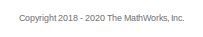
[diagram: root canvas - part 1/3, top center region]
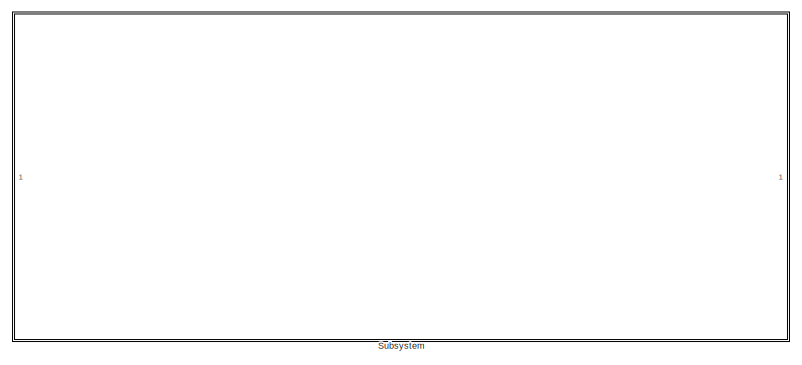
[diagram: root canvas - part 2/3, bottom left region]
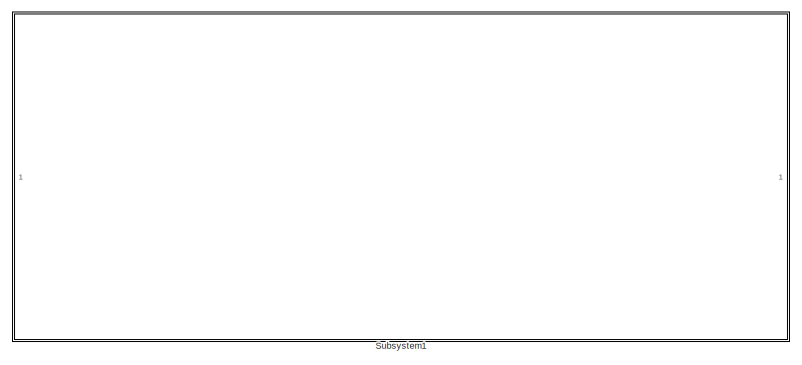
[diagram: root canvas - part 3/3, bottom right region]
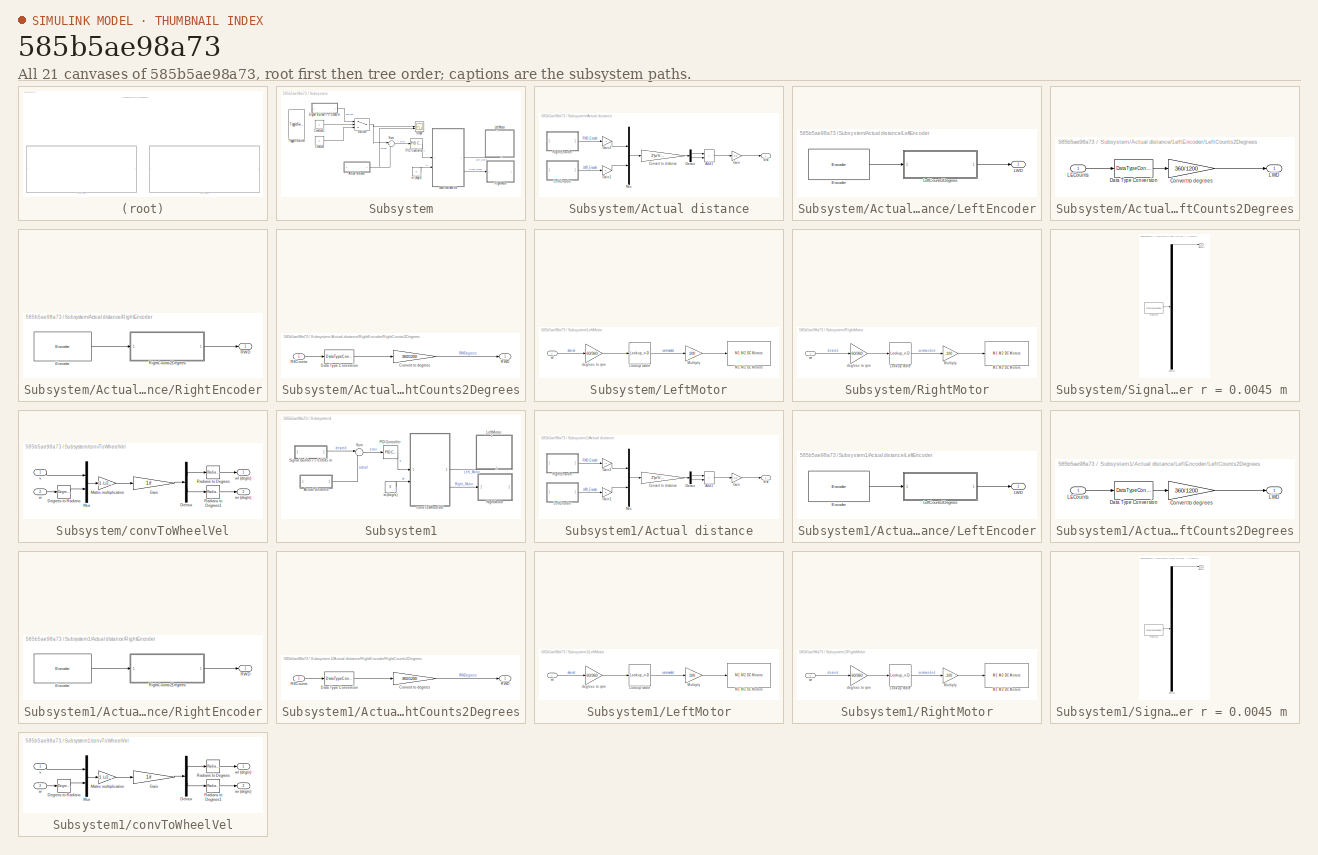
[diagram: thumbnail index - all 21 canvases of the model, root first then tree order]
MODEL slx_585b5ae98a73
KIND model
CONFIG AbsTol = auto
CONFIG EnableMultiTasking = on
CONFIG FixedStep = TS
CONFIG MaxStep = auto
CONFIG MinStep = auto
CONFIG PostLoadFcn = paramsBasicKinematics\nload('motorResponse.mat')
CONFIG RelTol = 1e-3
CONFIG SampleTimeConstraint = Unconstrained
CONFIG SolverName = FixedStepAuto
CONFIG StartTime = 0.0
CONFIG StopTime = 30
WORKSPACE source: mxarray member
WORKSPACE TS = 0.01
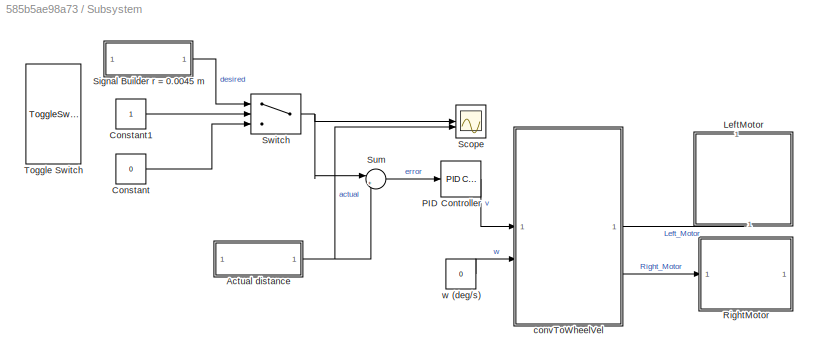
BLOCK [SubSystem] Subsystem
  Commented = on
BLOCK [SubSystem] Subsystem/Actual distance
BLOCK [Sum] Subsystem/Actual distance/Add1
  IconShape = rectangular
BLOCK [Gain] Subsystem/Actual distance/Convert to distance
  Gain = 2*pi*r/360
BLOCK [Demux] Subsystem/Actual distance/Demux
  Outputs = 2
BLOCK [Gain] Subsystem/Actual distance/Gain
  Gain = 0.5
BLOCK [Gain] Subsystem/Actual distance/Gain1
BLOCK [Gain] Subsystem/Actual distance/Gain2
  Gain = -1
BLOCK [SubSystem] Subsystem/Actual distance/LeftEncoder
BLOCK [Reference] Subsystem/Actual distance/LeftEncoder/Encoder  REF=arduinomotorcarrierlib/Encoder
  SourceBlock = arduinomotorcarrierlib/Encoder
  SourceType = motorcarrier.blocks.mkrmotorcarrier_Encoder
BLOCK [Outport] Subsystem/Actual distance/LeftEncoder/LWD
  VectorParamsAs1DForOutWhenUnconnected = off
BLOCK [SubSystem] Subsystem/Actual distance/LeftEncoder/LeftCounts2Degrees
BLOCK [Gain] Subsystem/Actual distance/LeftEncoder/LeftCounts2Degrees/Convert to degrees
  Gain = 360/1200
BLOCK [DataTypeConversion] Subsystem/Actual distance/LeftEncoder/LeftCounts2Degrees/Data Type Conversion
  OutDataTypeStr = double
  RndMeth = Floor
  SaturateOnIntegerOverflow = off
BLOCK [Inport] Subsystem/Actual distance/LeftEncoder/LeftCounts2Degrees/LECounts
BLOCK [Outport] Subsystem/Actual distance/LeftEncoder/LeftCounts2Degrees/LWD
  VectorParamsAs1DForOutWhenUnconnected = off
BLOCK [Mux] Subsystem/Actual distance/Mux
  DisplayOption = bar
  Inputs = 2
BLOCK [SubSystem] Subsystem/Actual distance/RightEncoder
BLOCK [Reference] Subsystem/Actual distance/RightEncoder/Encoder  REF=arduinomotorcarrierlib/Encoder
  SourceBlock = arduinomotorcarrierlib/Encoder
  SourceType = motorcarrier.blocks.mkrmotorcarrier_Encoder
BLOCK [Outport] Subsystem/Actual distance/RightEncoder/RWD
  VectorParamsAs1DForOutWhenUnconnected = off
BLOCK [SubSystem] Subsystem/Actual distance/RightEncoder/RightCounts2Degrees
BLOCK [Gain] Subsystem/Actual distance/RightEncoder/RightCounts2Degrees/Convert to degrees
  Gain = 360/1200
BLOCK [DataTypeConversion] Subsystem/Actual distance/RightEncoder/RightCounts2Degrees/Data Type Conversion
  OutDataTypeStr = double
  RndMeth = Floor
  SaturateOnIntegerOverflow = off
BLOCK [Inport] Subsystem/Actual distance/RightEncoder/RightCounts2Degrees/RECounts
BLOCK [Outport] Subsystem/Actual distance/RightEncoder/RightCounts2Degrees/RWD
  VectorParamsAs1DForOutWhenUnconnected = off
BLOCK [Outport] Subsystem/Actual distance/dist
  VectorParamsAs1DForOutWhenUnconnected = off
BLOCK [Constant] Subsystem/Constant
  Value = 0
BLOCK [Constant] Subsystem/Constant1
BLOCK [SubSystem] Subsystem/LeftMotor
  NameLocation = left
  PortSchema = {"entries":[{"content":{"sides":[{"content":{"connectorIds":[]},"type":"ConnectorPlacement.EquallySpacedRectSide","uuid":"6b240029-b7b2-4aa8-8af5-bcdc90edccb3"},{"content":{"connectorIds":[],"side":"RIGHT"},"type":"ConnectorPlacement.EquallySpacedRectSide","uuid":"1a2d11e5-5b26-4193-8988-f8fe1e33b39d"},{"content":{"connectorIds":[],"side":"TOP"},"type":"ConnectorPlacement.EquallySpacedRectSide","u...<+380ch>
BLOCK [Lookup_n-D] Subsystem/LeftMotor/Lookup table
  BreakpointsForDimension1 = speedMono
  InputPortMap = u0
  InternalRulePriority = Speed
  NumberOfTableDimensions = 1
  RndMeth = Simplest
  Table = PWMcmdMono
  UseLastTableValue = on
BLOCK [Reference] Subsystem/LeftMotor/M1 M2 DC Motors  REF=arduinomotorcarrierlib/M1 M2 DC Motors
  SourceBlock = arduinomotorcarrierlib/M1 M2 DC Motors
  SourceType = DC Motor
BLOCK [Gain] Subsystem/LeftMotor/Multiply
  Gain = 100
BLOCK [Gain] Subsystem/LeftMotor/deg//sec to rpm
  Gain = 60/360
BLOCK [Inport] Subsystem/LeftMotor/wl
BLOCK [Reference] Subsystem/PID Controller   REF=slpidlib/PID Controller
  SourceBlock = slpidlib/PID Controller
  SourceType = PID 1dof
BLOCK [SubSystem] Subsystem/RightMotor
BLOCK [Lookup_n-D] Subsystem/RightMotor/Lookup table
  BreakpointsForDimension1 = speedMono
  InputPortMap = u0
  InternalRulePriority = Speed
  NumberOfTableDimensions = 1
  RndMeth = Simplest
  Table = PWMcmdMono
  UseLastTableValue = on
BLOCK [Reference] Subsystem/RightMotor/M1 M2 DC Motors  REF=arduinomotorcarrierlib/M1 M2 DC Motors
  SourceBlock = arduinomotorcarrierlib/M1 M2 DC Motors
  SourceType = DC Motor
BLOCK [Gain] Subsystem/RightMotor/Multiply
  Gain = -100
BLOCK [Gain] Subsystem/RightMotor/deg//sec to rpm
  Gain = 60/360
BLOCK [Inport] Subsystem/RightMotor/wr
BLOCK [Scope] Subsystem/Scope
  Floating = off
  NumInputPorts = 2
  ScopeSpecificationString = Simulink.scopes.TimeScopeBlockCfg('CurrentConfiguration', extmgr.ConfigurationSet(extmgr.Configuration('Core','General UI',true),extmgr.Configuration('Core','Source UI',true),extmgr.Configuration('Sources','WiredSimulink',true,'DataLoggingVariableName','ScopeData1'),extmgr.Configuration('Visuals','Time Domain',true,'SerializedDisplays',{struct('MinYLimReal','-4.32951','MaxYLimReal','28.83393','YLa...<+2419ch>
BLOCK [SubSystem] Subsystem/Signal Builder r = 0.0045 m 
  ClipboardFcn = sigbuilder_block('clipboard');
  CloseFcn = sigbuilder_block('close');
  ContinueFcn = sigbuilder_block('continue');
  CopyFcn = sigbuilder_block('copy');
  DeleteFcn = sigbuilder_block('delete');
  LoadFcn = sigbuilder_block('load');
  MaskHideContents = on
  ModelCloseFcn = sigbuilder_block('modelClose');
  NameChangeFcn = sigbuilder_block('namechange');
  OpenFcn = sigbuilder_block('open',[5.25 125.25 660.75 283.5 ]);
  PauseFcn = sigbuilder_block('pause');
  PreSaveFcn = sigbuilder_block('preSave');
  StartFcn = sigbuilder_block('start');
  StopFcn = sigbuilder_block('stop');
  Tag = STV Subsys
BLOCK [Demux] Subsystem/Signal Builder r = 0.0045 m /Demux
  DisplayOption = none
  Outputs = 1
  Tag = STV Demux
BLOCK [FromWorkspace] Subsystem/Signal Builder r = 0.0045 m /FromWs
  Tag = STV FromWs
  VariableName = tuvar
BLOCK [Outport] Subsystem/Signal Builder r = 0.0045 m /Signal 1
  Tag = STV Outport
  VectorParamsAs1DForOutWhenUnconnected = off
BLOCK [Sum] Subsystem/Sum
  Inputs = |+-
BLOCK [Switch] Subsystem/Switch
  Criteria = u2 > Threshold
  InputSameDT = off
  SaturateOnIntegerOverflow = off
BLOCK [ToggleSwitchBlock] Subsystem/Toggle Switch
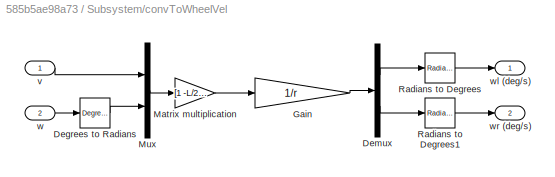
BLOCK [SubSystem] Subsystem/convToWheelVel
BLOCK [Gain] Subsystem/convToWheelVel/ Gain
  Gain = 1/r
  Multiplication = Matrix(K*u)
BLOCK [Reference] Subsystem/convToWheelVel/Degrees to Radians  REF=simulink_extras/Transformations/Degrees to
Radians
  SourceBlock = simulink_extras/Transformations/Degrees to\nRadians
  SourceType = DegreesToRadians
BLOCK [Demux] Subsystem/convToWheelVel/Demux
  Outputs = 2
BLOCK [Gain] Subsystem/convToWheelVel/Matrix multiplication
  Gain = [1 -L/2; 1 L/2]
  Multiplication = Matrix(K*u)
BLOCK [Mux] Subsystem/convToWheelVel/Mux
  DisplayOption = bar
  Inputs = 2
BLOCK [Reference] Subsystem/convToWheelVel/Radians to Degrees  REF=simulink_extras/Transformations/Radians
to Degrees
  SourceBlock = simulink_extras/Transformations/Radians\nto Degrees
  SourceType = RadiansToDegrees
BLOCK [Reference] Subsystem/convToWheelVel/Radians to Degrees1  REF=simulink_extras/Transformations/Radians
to Degrees
  SourceBlock = simulink_extras/Transformations/Radians\nto Degrees
  SourceType = RadiansToDegrees
BLOCK [Inport] Subsystem/convToWheelVel/v
BLOCK [Inport] Subsystem/convToWheelVel/w
  Port = 2
BLOCK [Outport] Subsystem/convToWheelVel/wl (deg//s)
  VectorParamsAs1DForOutWhenUnconnected = off
BLOCK [Outport] Subsystem/convToWheelVel/wr (deg//s)
  Port = 2
  VectorParamsAs1DForOutWhenUnconnected = off
BLOCK [Constant] Subsystem/w (deg//s)
  Value = 0
BLOCK [SubSystem] Subsystem1
BLOCK [SubSystem] Subsystem1/Actual distance
BLOCK [Sum] Subsystem1/Actual distance/Add1
  IconShape = rectangular
BLOCK [Gain] Subsystem1/Actual distance/Convert to distance
  Gain = 2*pi*r/360
BLOCK [Demux] Subsystem1/Actual distance/Demux
  Outputs = 2
BLOCK [Gain] Subsystem1/Actual distance/Gain
  Gain = 0.5
BLOCK [Gain] Subsystem1/Actual distance/Gain1
BLOCK [Gain] Subsystem1/Actual distance/Gain2
  Gain = -1
BLOCK [SubSystem] Subsystem1/Actual distance/LeftEncoder
BLOCK [Reference] Subsystem1/Actual distance/LeftEncoder/Encoder  REF=arduinomotorcarrierlib/Encoder
  SourceBlock = arduinomotorcarrierlib/Encoder
  SourceType = motorcarrier.blocks.mkrmotorcarrier_Encoder
BLOCK [Outport] Subsystem1/Actual distance/LeftEncoder/LWD
  VectorParamsAs1DForOutWhenUnconnected = off
BLOCK [SubSystem] Subsystem1/Actual distance/LeftEncoder/LeftCounts2Degrees
BLOCK [Gain] Subsystem1/Actual distance/LeftEncoder/LeftCounts2Degrees/Convert to degrees
  Gain = 360/1200
BLOCK [DataTypeConversion] Subsystem1/Actual distance/LeftEncoder/LeftCounts2Degrees/Data Type Conversion
  OutDataTypeStr = double
  RndMeth = Floor
  SaturateOnIntegerOverflow = off
BLOCK [Inport] Subsystem1/Actual distance/LeftEncoder/LeftCounts2Degrees/LECounts
BLOCK [Outport] Subsystem1/Actual distance/LeftEncoder/LeftCounts2Degrees/LWD
  VectorParamsAs1DForOutWhenUnconnected = off
BLOCK [Mux] Subsystem1/Actual distance/Mux
  DisplayOption = bar
  Inputs = 2
BLOCK [SubSystem] Subsystem1/Actual distance/RightEncoder
BLOCK [Reference] Subsystem1/Actual distance/RightEncoder/Encoder  REF=arduinomotorcarrierlib/Encoder
  SourceBlock = arduinomotorcarrierlib/Encoder
  SourceType = motorcarrier.blocks.mkrmotorcarrier_Encoder
BLOCK [Outport] Subsystem1/Actual distance/RightEncoder/RWD
  VectorParamsAs1DForOutWhenUnconnected = off
BLOCK [SubSystem] Subsystem1/Actual distance/RightEncoder/RightCounts2Degrees
BLOCK [Gain] Subsystem1/Actual distance/RightEncoder/RightCounts2Degrees/Convert to degrees
  Gain = 360/1200
BLOCK [DataTypeConversion] Subsystem1/Actual distance/RightEncoder/RightCounts2Degrees/Data Type Conversion
  OutDataTypeStr = double
  RndMeth = Floor
  SaturateOnIntegerOverflow = off
BLOCK [Inport] Subsystem1/Actual distance/RightEncoder/RightCounts2Degrees/RECounts
BLOCK [Outport] Subsystem1/Actual distance/RightEncoder/RightCounts2Degrees/RWD
  VectorParamsAs1DForOutWhenUnconnected = off
BLOCK [Outport] Subsystem1/Actual distance/dist
  VectorParamsAs1DForOutWhenUnconnected = off
BLOCK [SubSystem] Subsystem1/LeftMotor
  NameLocation = left
  PortSchema = {"entries":[{"content":{"sides":[{"content":{"connectorIds":[]},"type":"ConnectorPlacement.EquallySpacedRectSide","uuid":"6b240029-b7b2-4aa8-8af5-bcdc90edccb3"},{"content":{"connectorIds":[],"side":"RIGHT"},"type":"ConnectorPlacement.EquallySpacedRectSide","uuid":"1a2d11e5-5b26-4193-8988-f8fe1e33b39d"},{"content":{"connectorIds":[],"side":"TOP"},"type":"ConnectorPlacement.EquallySpacedRectSide","u...<+380ch>
BLOCK [Lookup_n-D] Subsystem1/LeftMotor/Lookup table
  BreakpointsForDimension1 = speedMono
  InputPortMap = u0
  InternalRulePriority = Speed
  NumberOfTableDimensions = 1
  RndMeth = Simplest
  Table = PWMcmdMono
  UseLastTableValue = on
BLOCK [Reference] Subsystem1/LeftMotor/M1 M2 DC Motors  REF=arduinomotorcarrierlib/M1 M2 DC Motors
  SourceBlock = arduinomotorcarrierlib/M1 M2 DC Motors
  SourceType = DC Motor
BLOCK [Gain] Subsystem1/LeftMotor/Multiply
  Gain = 100
BLOCK [Gain] Subsystem1/LeftMotor/deg//sec to rpm
  Gain = 60/360
BLOCK [Inport] Subsystem1/LeftMotor/wl
BLOCK [Reference] Subsystem1/PID Controller   REF=slpidlib/PID Controller
  SourceBlock = slpidlib/PID Controller
  SourceType = PID 1dof
BLOCK [SubSystem] Subsystem1/RightMotor
BLOCK [Lookup_n-D] Subsystem1/RightMotor/Lookup table
  BreakpointsForDimension1 = speedMono
  InputPortMap = u0
  InternalRulePriority = Speed
  NumberOfTableDimensions = 1
  RndMeth = Simplest
  Table = PWMcmdMono
  UseLastTableValue = on
BLOCK [Reference] Subsystem1/RightMotor/M1 M2 DC Motors  REF=arduinomotorcarrierlib/M1 M2 DC Motors
  SourceBlock = arduinomotorcarrierlib/M1 M2 DC Motors
  SourceType = DC Motor
BLOCK [Gain] Subsystem1/RightMotor/Multiply
  Gain = -100
BLOCK [Gain] Subsystem1/RightMotor/deg//sec to rpm
  Gain = 60/360
BLOCK [Inport] Subsystem1/RightMotor/wr
BLOCK [SubSystem] Subsystem1/Signal Builder r = 0.0045 m 
  ClipboardFcn = sigbuilder_block('clipboard');
  CloseFcn = sigbuilder_block('close');
  ContinueFcn = sigbuilder_block('continue');
  CopyFcn = sigbuilder_block('copy');
  DeleteFcn = sigbuilder_block('delete');
  LoadFcn = sigbuilder_block('load');
  MaskHideContents = on
  ModelCloseFcn = sigbuilder_block('modelClose');
  NameChangeFcn = sigbuilder_block('namechange');
  OpenFcn = sigbuilder_block('open',[5.25 125.25 660.75 283.5 ]);
  PauseFcn = sigbuilder_block('pause');
  PreSaveFcn = sigbuilder_block('preSave');
  StartFcn = sigbuilder_block('start');
  StopFcn = sigbuilder_block('stop');
  Tag = STV Subsys
BLOCK [Demux] Subsystem1/Signal Builder r = 0.0045 m /Demux
  DisplayOption = none
  Outputs = 1
  Tag = STV Demux
BLOCK [FromWorkspace] Subsystem1/Signal Builder r = 0.0045 m /FromWs
  Tag = STV FromWs
  VariableName = tuvar
BLOCK [Outport] Subsystem1/Signal Builder r = 0.0045 m /Signal 1
  Tag = STV Outport
  VectorParamsAs1DForOutWhenUnconnected = off
BLOCK [Sum] Subsystem1/Sum
  Inputs = |+-
BLOCK [SubSystem] Subsystem1/convToWheelVel
BLOCK [Gain] Subsystem1/convToWheelVel/ Gain
  Gain = 1/r
  Multiplication = Matrix(K*u)
BLOCK [Reference] Subsystem1/convToWheelVel/Degrees to Radians  REF=simulink_extras/Transformations/Degrees to
Radians
  SourceBlock = simulink_extras/Transformations/Degrees to\nRadians
  SourceType = DegreesToRadians
BLOCK [Demux] Subsystem1/convToWheelVel/Demux
  Outputs = 2
BLOCK [Gain] Subsystem1/convToWheelVel/Matrix multiplication
  Gain = [1 -L/2; 1 L/2]
  Multiplication = Matrix(K*u)
BLOCK [Mux] Subsystem1/convToWheelVel/Mux
  DisplayOption = bar
  Inputs = 2
BLOCK [Reference] Subsystem1/convToWheelVel/Radians to Degrees  REF=simulink_extras/Transformations/Radians
to Degrees
  SourceBlock = simulink_extras/Transformations/Radians\nto Degrees
  SourceType = RadiansToDegrees
BLOCK [Reference] Subsystem1/convToWheelVel/Radians to Degrees1  REF=simulink_extras/Transformations/Radians
to Degrees
  SourceBlock = simulink_extras/Transformations/Radians\nto Degrees
  SourceType = RadiansToDegrees
BLOCK [Inport] Subsystem1/convToWheelVel/v
BLOCK [Inport] Subsystem1/convToWheelVel/w
  Port = 2
BLOCK [Outport] Subsystem1/convToWheelVel/wl (deg//s)
  VectorParamsAs1DForOutWhenUnconnected = off
BLOCK [Outport] Subsystem1/convToWheelVel/wr (deg//s)
  Port = 2
  VectorParamsAs1DForOutWhenUnconnected = off
BLOCK [Constant] Subsystem1/w (deg//s)
  Value = 0
ANNOTATION (root): <copyright redacted>
LINE Subsystem/Actual distance/Add1:1 -> Subsystem/Actual distance/Gain:1
LINE Subsystem/Actual distance/Convert to distance:1 -> Subsystem/Actual distance/Demux:1
LINE Subsystem/Actual distance/Demux:1 -> Subsystem/Actual distance/Add1:1
LINE Subsystem/Actual distance/Demux:2 -> Subsystem/Actual distance/Add1:2
LINE Subsystem/Actual distance/Gain1:1 -> Subsystem/Actual distance/Mux:2
LINE Subsystem/Actual distance/Gain2:1 -> Subsystem/Actual distance/Mux:1
LINE Subsystem/Actual distance/Gain:1 -> Subsystem/Actual distance/dist:1
LINE Subsystem/Actual distance/LeftEncoder/Encoder:1 -> Subsystem/Actual distance/LeftEncoder/LeftCounts2Degrees:1
LINE Subsystem/Actual distance/LeftEncoder/LeftCounts2Degrees/Convert to degrees:1 -> Subsystem/Actual distance/LeftEncoder/LeftCounts2Degrees/LWD:1
LINE Subsystem/Actual distance/LeftEncoder/LeftCounts2Degrees/Data Type Conversion:1 -> Subsystem/Actual distance/LeftEncoder/LeftCounts2Degrees/Convert to degrees:1
LINE Subsystem/Actual distance/LeftEncoder/LeftCounts2Degrees/LECounts:1 -> Subsystem/Actual distance/LeftEncoder/LeftCounts2Degrees/Data Type Conversion:1
LINE Subsystem/Actual distance/LeftEncoder/LeftCounts2Degrees:1 -> Subsystem/Actual distance/LeftEncoder/LWD:1
LINE Subsystem/Actual distance/LeftEncoder:1 -> Subsystem/Actual distance/Gain1:1
LINE Subsystem/Actual distance/Mux:1 -> Subsystem/Actual distance/Convert to distance:1
LINE Subsystem/Actual distance/RightEncoder/Encoder:1 -> Subsystem/Actual distance/RightEncoder/RightCounts2Degrees:1
LINE Subsystem/Actual distance/RightEncoder/RightCounts2Degrees/Convert to degrees:1 -> Subsystem/Actual distance/RightEncoder/RightCounts2Degrees/RWD:1
LINE Subsystem/Actual distance/RightEncoder/RightCounts2Degrees/Data Type Conversion:1 -> Subsystem/Actual distance/RightEncoder/RightCounts2Degrees/Convert to degrees:1
LINE Subsystem/Actual distance/RightEncoder/RightCounts2Degrees/RECounts:1 -> Subsystem/Actual distance/RightEncoder/RightCounts2Degrees/Data Type Conversion:1
LINE Subsystem/Actual distance/RightEncoder/RightCounts2Degrees:1 -> Subsystem/Actual distance/RightEncoder/RWD:1
LINE Subsystem/Actual distance/RightEncoder:1 -> Subsystem/Actual distance/Gain2:1
NET Subsystem/Actual distance:1 -> Subsystem/Scope:2, Subsystem/Sum:2
LINE Subsystem/Constant1:1 -> Subsystem/Switch:2
LINE Subsystem/Constant:1 -> Subsystem/Switch:3
LINE Subsystem/LeftMotor/Lookup table:1 -> Subsystem/LeftMotor/Multiply:1
LINE Subsystem/LeftMotor/Multiply:1 -> Subsystem/LeftMotor/M1 M2 DC Motors:1
LINE Subsystem/LeftMotor/deg//sec to rpm:1 -> Subsystem/LeftMotor/Lookup table:1
LINE Subsystem/LeftMotor/wl:1 -> Subsystem/LeftMotor/deg//sec to rpm:1
LINE Subsystem/PID Controller :1 -> Subsystem/convToWheelVel:1
LINE Subsystem/RightMotor/Lookup table:1 -> Subsystem/RightMotor/Multiply:1
LINE Subsystem/RightMotor/Multiply:1 -> Subsystem/RightMotor/M1 M2 DC Motors:1
LINE Subsystem/RightMotor/deg//sec to rpm:1 -> Subsystem/RightMotor/Lookup table:1
LINE Subsystem/RightMotor/wr:1 -> Subsystem/RightMotor/deg//sec to rpm:1
LINE Subsystem/Signal Builder r = 0.0045 m :1 -> Subsystem/Switch:1
LINE Subsystem/Sum:1 -> Subsystem/PID Controller :1
NET Subsystem/Switch:1 -> Subsystem/Scope:1, Subsystem/Sum:1
LINE Subsystem/convToWheelVel/ Gain:1 -> Subsystem/convToWheelVel/Demux:1
LINE Subsystem/convToWheelVel/Degrees to Radians:1 -> Subsystem/convToWheelVel/Mux:2
LINE Subsystem/convToWheelVel/Demux:1 -> Subsystem/convToWheelVel/Radians to Degrees:1
LINE Subsystem/convToWheelVel/Demux:2 -> Subsystem/convToWheelVel/Radians to Degrees1:1
LINE Subsystem/convToWheelVel/Matrix multiplication:1 -> Subsystem/convToWheelVel/ Gain:1
LINE Subsystem/convToWheelVel/Mux:1 -> Subsystem/convToWheelVel/Matrix multiplication:1
LINE Subsystem/convToWheelVel/Radians to Degrees1:1 -> Subsystem/convToWheelVel/wr (deg//s):1
LINE Subsystem/convToWheelVel/Radians to Degrees:1 -> Subsystem/convToWheelVel/wl (deg//s):1
LINE Subsystem/convToWheelVel/v:1 -> Subsystem/convToWheelVel/Mux:1
LINE Subsystem/convToWheelVel/w:1 -> Subsystem/convToWheelVel/Degrees to Radians:1
LINE Subsystem/convToWheelVel:1 -> Subsystem/LeftMotor:1
LINE Subsystem/convToWheelVel:2 -> Subsystem/RightMotor:1
LINE Subsystem/w (deg//s):1 -> Subsystem/convToWheelVel:2
LINE Subsystem1/Actual distance/Add1:1 -> Subsystem1/Actual distance/Gain:1
LINE Subsystem1/Actual distance/Convert to distance:1 -> Subsystem1/Actual distance/Demux:1
LINE Subsystem1/Actual distance/Demux:1 -> Subsystem1/Actual distance/Add1:1
LINE Subsystem1/Actual distance/Demux:2 -> Subsystem1/Actual distance/Add1:2
LINE Subsystem1/Actual distance/Gain1:1 -> Subsystem1/Actual distance/Mux:2
LINE Subsystem1/Actual distance/Gain2:1 -> Subsystem1/Actual distance/Mux:1
LINE Subsystem1/Actual distance/Gain:1 -> Subsystem1/Actual distance/dist:1
LINE Subsystem1/Actual distance/LeftEncoder/Encoder:1 -> Subsystem1/Actual distance/LeftEncoder/LeftCounts2Degrees:1
LINE Subsystem1/Actual distance/LeftEncoder/LeftCounts2Degrees/Convert to degrees:1 -> Subsystem1/Actual distance/LeftEncoder/LeftCounts2Degrees/LWD:1
LINE Subsystem1/Actual distance/LeftEncoder/LeftCounts2Degrees/Data Type Conversion:1 -> Subsystem1/Actual distance/LeftEncoder/LeftCounts2Degrees/Convert to degrees:1
LINE Subsystem1/Actual distance/LeftEncoder/LeftCounts2Degrees/LECounts:1 -> Subsystem1/Actual distance/LeftEncoder/LeftCounts2Degrees/Data Type Conversion:1
LINE Subsystem1/Actual distance/LeftEncoder/LeftCounts2Degrees:1 -> Subsystem1/Actual distance/LeftEncoder/LWD:1
LINE Subsystem1/Actual distance/LeftEncoder:1 -> Subsystem1/Actual distance/Gain1:1
LINE Subsystem1/Actual distance/Mux:1 -> Subsystem1/Actual distance/Convert to distance:1
LINE Subsystem1/Actual distance/RightEncoder/Encoder:1 -> Subsystem1/Actual distance/RightEncoder/RightCounts2Degrees:1
LINE Subsystem1/Actual distance/RightEncoder/RightCounts2Degrees/Convert to degrees:1 -> Subsystem1/Actual distance/RightEncoder/RightCounts2Degrees/RWD:1
LINE Subsystem1/Actual distance/RightEncoder/RightCounts2Degrees/Data Type Conversion:1 -> Subsystem1/Actual distance/RightEncoder/RightCounts2Degrees/Convert to degrees:1
LINE Subsystem1/Actual distance/RightEncoder/RightCounts2Degrees/RECounts:1 -> Subsystem1/Actual distance/RightEncoder/RightCounts2Degrees/Data Type Conversion:1
LINE Subsystem1/Actual distance/RightEncoder/RightCounts2Degrees:1 -> Subsystem1/Actual distance/RightEncoder/RWD:1
LINE Subsystem1/Actual distance/RightEncoder:1 -> Subsystem1/Actual distance/Gain2:1
LINE Subsystem1/Actual distance:1 -> Subsystem1/Sum:2
LINE Subsystem1/LeftMotor/Lookup table:1 -> Subsystem1/LeftMotor/Multiply:1
LINE Subsystem1/LeftMotor/Multiply:1 -> Subsystem1/LeftMotor/M1 M2 DC Motors:1
LINE Subsystem1/LeftMotor/deg//sec to rpm:1 -> Subsystem1/LeftMotor/Lookup table:1
LINE Subsystem1/LeftMotor/wl:1 -> Subsystem1/LeftMotor/deg//sec to rpm:1
LINE Subsystem1/PID Controller :1 -> Subsystem1/convToWheelVel:1
LINE Subsystem1/RightMotor/Lookup table:1 -> Subsystem1/RightMotor/Multiply:1
LINE Subsystem1/RightMotor/Multiply:1 -> Subsystem1/RightMotor/M1 M2 DC Motors:1
LINE Subsystem1/RightMotor/deg//sec to rpm:1 -> Subsystem1/RightMotor/Lookup table:1
LINE Subsystem1/RightMotor/wr:1 -> Subsystem1/RightMotor/deg//sec to rpm:1
LINE Subsystem1/Signal Builder r = 0.0045 m :1 -> Subsystem1/Sum:1
LINE Subsystem1/Sum:1 -> Subsystem1/PID Controller :1
LINE Subsystem1/convToWheelVel/ Gain:1 -> Subsystem1/convToWheelVel/Demux:1
LINE Subsystem1/convToWheelVel/Degrees to Radians:1 -> Subsystem1/convToWheelVel/Mux:2
LINE Subsystem1/convToWheelVel/Demux:1 -> Subsystem1/convToWheelVel/Radians to Degrees:1
LINE Subsystem1/convToWheelVel/Demux:2 -> Subsystem1/convToWheelVel/Radians to Degrees1:1
LINE Subsystem1/convToWheelVel/Matrix multiplication:1 -> Subsystem1/convToWheelVel/ Gain:1
LINE Subsystem1/convToWheelVel/Mux:1 -> Subsystem1/convToWheelVel/Matrix multiplication:1
LINE Subsystem1/convToWheelVel/Radians to Degrees1:1 -> Subsystem1/convToWheelVel/wr (deg//s):1
LINE Subsystem1/convToWheelVel/Radians to Degrees:1 -> Subsystem1/convToWheelVel/wl (deg//s):1
LINE Subsystem1/convToWheelVel/v:1 -> Subsystem1/convToWheelVel/Mux:1
LINE Subsystem1/convToWheelVel/w:1 -> Subsystem1/convToWheelVel/Degrees to Radians:1
LINE Subsystem1/convToWheelVel:1 -> Subsystem1/LeftMotor:1
LINE Subsystem1/convToWheelVel:2 -> Subsystem1/RightMotor:1
LINE Subsystem1/w (deg//s):1 -> Subsystem1/convToWheelVel:2
note: NET lines group one-source signal fan-out (src -> all destinations, sorted); 1:1 wires keep LINE
